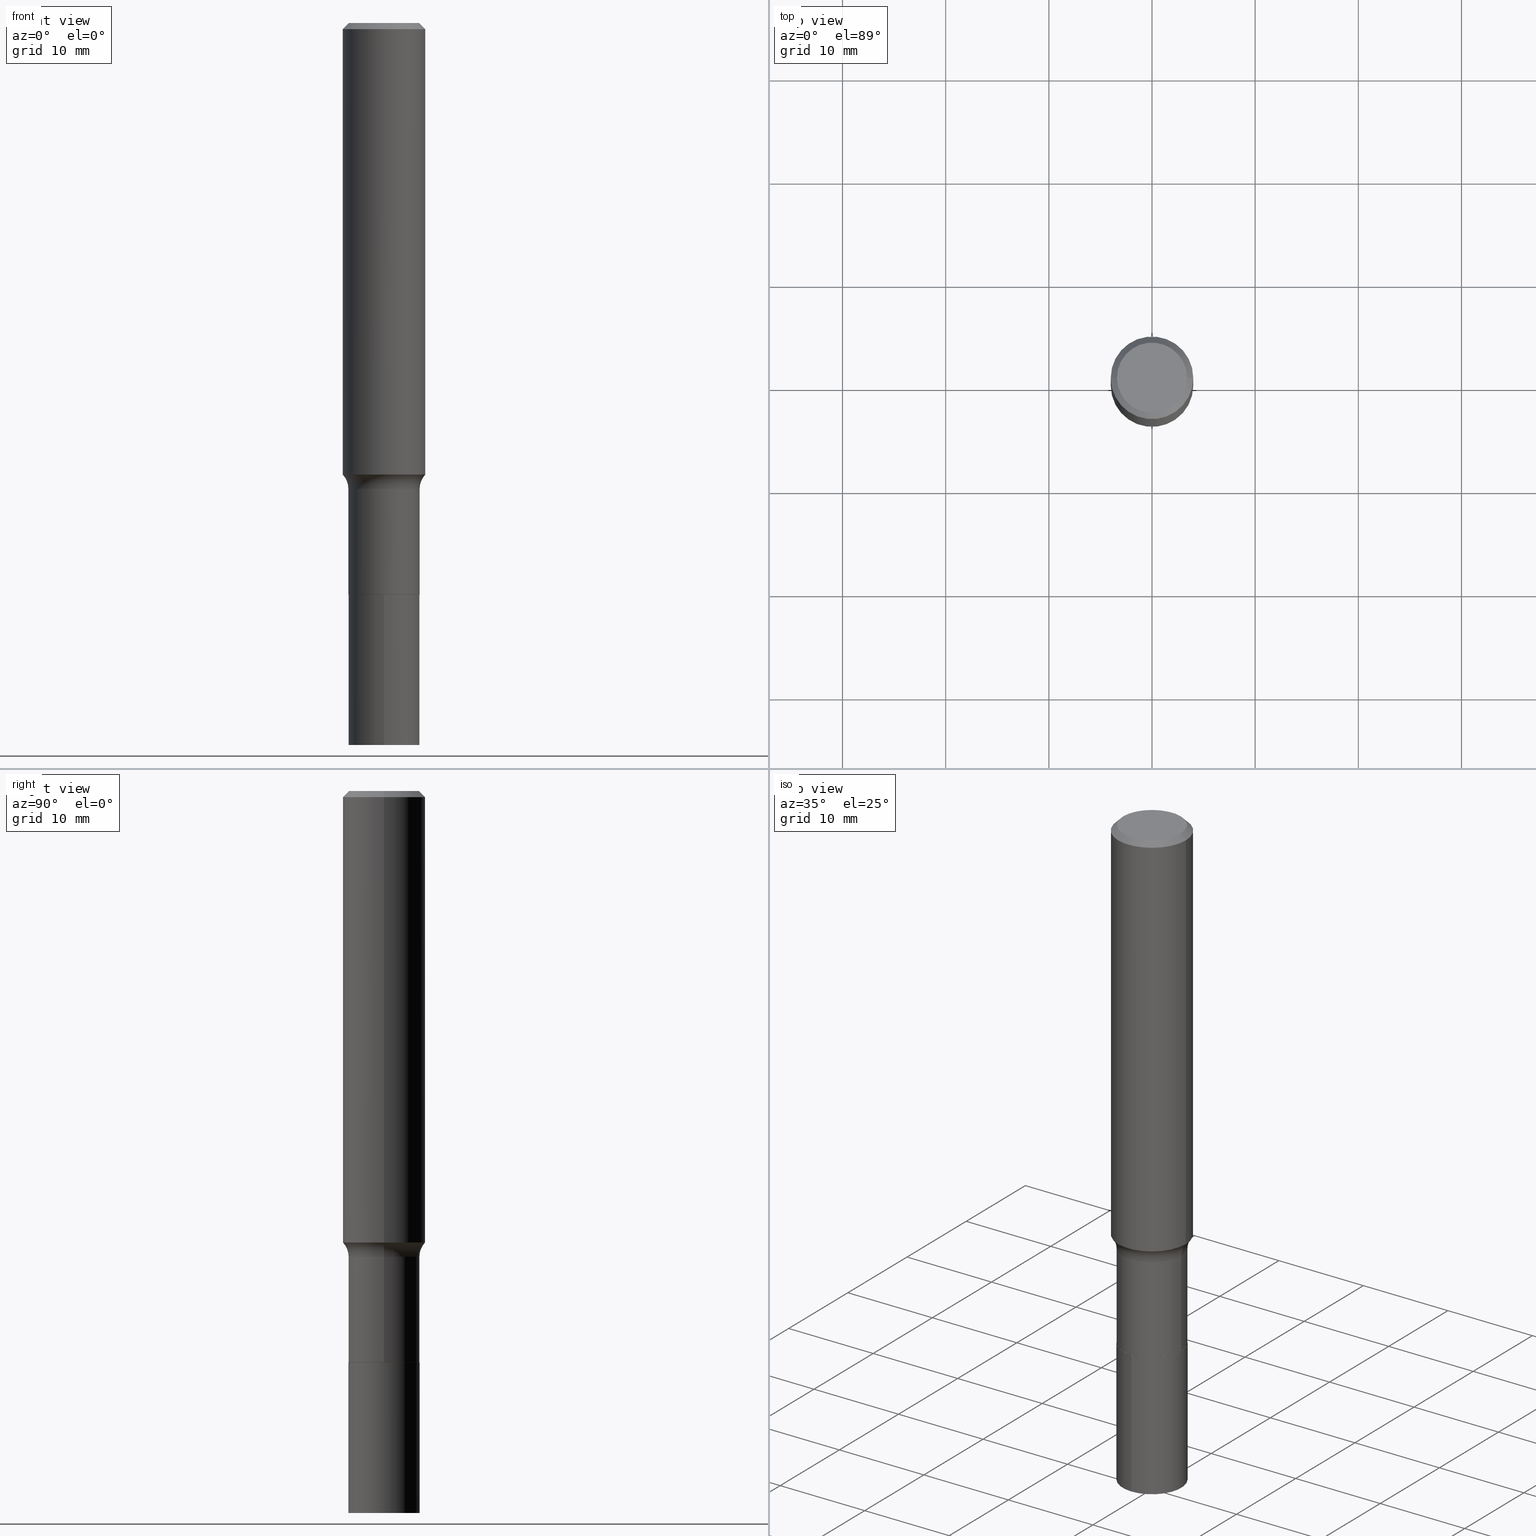
[diagram: canonical four-view strip — front | top / right | iso, engineering-drawing reading convention]
A machine part, canonical four-view strip (front | top / right | iso — engineering-drawing reading convention). The complete STEP part file that produces these views, byte-faithful:
ISO-10303-21;
HEADER;
FILE_DESCRIPTION (( 'STEP AP203' ),
    '1' );
FILE_NAME ('58514.STEP',
    '2024-04-19T14:40:47',
    ( '' ),
    ( '' ),
    'SwSTEP 2.0',
    'SolidWorks 2023',
    '' );
FILE_SCHEMA (( 'CONFIG_CONTROL_DESIGN' ));
ENDSEC;

DATA;
#1 = APPROVAL_DATE_TIME ( #253, #244 ) ;
#2 = AXIS2_PLACEMENT_3D ( 'NONE', #423, #134, #66 ) ;
#3 = VERTEX_POINT ( 'NONE', #370 ) ;
#4 = ORIENTED_EDGE ( 'NONE', *, *, #201, .T. ) ;
#5 = DIMENSIONAL_EXPONENTS ( 1.000000000000000000, 0.000000000000000000, 0.000000000000000000, 0.000000000000000000, 0.000000000000000000, 0.000000000000000000, 0.000000000000000000 ) ;
#6 = ADVANCED_FACE ( 'NONE', ( #193 ), #120, .F. ) ;
#7 = CARTESIAN_POINT ( 'NONE',  ( 5.333322919409164465E-29, -7.614571651883016400E-15, -2.180899999999999839 ) ) ;
#8 = PRODUCT ( '58514', '58514', '', ( #314 ) ) ;
#9 = CYLINDRICAL_SURFACE ( 'NONE', #380, 0.1575000000000000844 ) ;
#10 = CARTESIAN_POINT ( 'NONE',  ( -0.1575000000000002232, -4.898572338728670003E-15, -1.723531236041119241 ) ) ;
#11 = COORDINATED_UNIVERSAL_TIME_OFFSET ( 5, 0, .BEHIND. ) ;
#12 = AXIS2_PLACEMENT_3D ( 'NONE', #106, #96, #384 ) ;
#13 = CARTESIAN_POINT ( 'NONE',  ( 0.1575000000000000011, -1.182302868365756679E-15, -0.02362500000000013201 ) ) ;
#14 = VERTEX_POINT ( 'NONE', #10 ) ;
#15 = EDGE_CURVE ( 'NONE', #330, #360, #297, .T. ) ;
#16 = DIRECTION ( 'NONE',  ( 1.000000000000000000, -6.982962677686262766E-15, 0.000000000000000000 ) ) ;
#17 = CARTESIAN_POINT ( 'NONE',  ( 4.348288084277790698E-29, -6.208202968596996327E-15, -1.778099999999999792 ) ) ;
#18 = CARTESIAN_POINT ( 'NONE',  ( 5.332100185006071663E-29, -7.612825911213594108E-15, -2.180400000000000116 ) ) ;
#19 = ORIENTED_EDGE ( 'NONE', *, *, #180, .T. ) ;
#20 = CONICAL_SURFACE ( 'NONE', #206, 0.1355000000000000093, 0.7853981633975849475 ) ;
#21 = CC_DESIGN_SECURITY_CLASSIFICATION ( #153, ( #428 ) ) ;
#22 = CARTESIAN_POINT ( 'NONE',  ( 0.000000000000000000, 0.000000000000000000, 0.000000000000000000 ) ) ;
#23 = DIRECTION ( 'NONE',  ( -2.445468806185136597E-29, 3.491481338843145583E-15, 1.000000000000000000 ) ) ;
#24 = ADVANCED_FACE ( 'NONE', ( #440 ), #420, .F. ) ;
#25 = CARTESIAN_POINT ( 'NONE',  ( 0.1355000000000000093, -8.560763094709504466E-15, -2.180899999999999839 ) ) ;
#26 = ORIENTED_EDGE ( 'NONE', *, *, #95, .T. ) ;
#27 = DIRECTION ( 'NONE',  ( 1.000000000000000000, -6.982962677686265133E-15, 0.000000000000000000 ) ) ;
#28 = CARTESIAN_POINT ( 'NONE',  ( -0.1575000000000000011, 1.017330375105417295E-15, -0.02362500000000013201 ) ) ;
#29 = CONICAL_SURFACE ( 'NONE', #99, 0.1355000000000000093, 0.7853981633975849475 ) ;
#30 = CARTESIAN_POINT ( 'NONE',  ( -0.1360000000000000098, 9.663381206337363222E-16, -6.689751722746672110E-30 ) ) ;
#31 = AXIS2_PLACEMENT_3D ( 'NONE', #278, #71, #173 ) ;
#32 = FACE_OUTER_BOUND ( 'NONE', #185, .T. ) ;
#33 = EDGE_CURVE ( 'NONE', #326, #34, #128, .T. ) ;
#34 = VERTEX_POINT ( 'NONE', #237 ) ;
#35 = EDGE_LOOP ( 'NONE', ( #400, #356, #123, #408 ) ) ;
#36 = PERSON_AND_ORGANIZATION ( #276, #395 ) ;
#37 = CLOSED_SHELL ( 'NONE', ( #178, #150, #439, #85 ) ) ;
#38 = AXIS2_PLACEMENT_3D ( 'NONE', #444, #377, #204 ) ;
#39 = LOCAL_TIME ( 10, 40, 47.00000000000000000, #361 ) ;
#40 = ORIENTED_EDGE ( 'NONE', *, *, #201, .F. ) ;
#41 = ORIENTED_EDGE ( 'NONE', *, *, #219, .T. ) ;
#42 = DATE_AND_TIME ( #194, #262 ) ;
#43 = VERTEX_POINT ( 'NONE', #415 ) ;
#44 = AXIS2_PLACEMENT_3D ( 'NONE', #385, #64, #279 ) ;
#45 = VECTOR ( 'NONE', #447, 39.37007874015748143 ) ;
#46 = EDGE_CURVE ( 'NONE', #156, #49, #47, .T. ) ;
#47 = LINE ( 'NONE', #129, #307 ) ;
#48 = CARTESIAN_POINT ( 'NONE',  ( 0.1575000000000002232, -7.117493769286417454E-15, -1.723531236041119241 ) ) ;
#49 = VERTEX_POINT ( 'NONE', #229 ) ;
#50 = DIRECTION ( 'NONE',  ( -2.445082877625027389E-29, 3.492034010506911501E-15, 1.000000000000000000 ) ) ;
#51 = APPROVAL ( #437, 'UNSPECIFIED' ) ;
#52 = CARTESIAN_POINT ( 'NONE',  ( 5.333322919409164465E-29, -7.614571651883016400E-15, -2.180899999999999839 ) ) ;
#53 = VECTOR ( 'NONE', #174, 39.37007874015748143 ) ;
#54 = PERSON_AND_ORGANIZATION_ROLE ( 'classification_officer' ) ;
#55 = TOROIDAL_SURFACE ( 'NONE', #162, 0.2159999999999999698, 0.07999999999999996003 ) ;
#56 = CARTESIAN_POINT ( 'NONE',  ( -0.1575000000000000844, 1.119104808822158392E-15, -7.747322767151481189E-30 ) ) ;
#57 = DIRECTION ( 'NONE',  ( -2.445082877625027389E-29, 3.492034010506911501E-15, 1.000000000000000000 ) ) ;
#58 = DIRECTION ( 'NONE',  ( -2.445468806185136597E-29, 3.491481338843145583E-15, 1.000000000000000000 ) ) ;
#59 = CARTESIAN_POINT ( 'NONE',  ( 0.000000000000000000, 0.000000000000000000, 0.000000000000000000 ) ) ;
#60 = CARTESIAN_POINT ( 'NONE',  ( 0.2159999999999999698, -7.716522906977230631E-15, -1.778099999999999792 ) ) ;
#61 = DIRECTION ( 'NONE',  ( -1.000000000000000000, 6.982962677686265922E-15, -4.876176775795935793E-29 ) ) ;
#62 = EDGE_CURVE ( 'NONE', #169, #360, #190, .T. ) ;
#63 = CIRCLE ( 'NONE', #412, 0.1359999999999999820 ) ;
#64 = DIRECTION ( 'NONE',  ( 2.445082877625027109E-29, -3.492034010506911501E-15, -1.000000000000000000 ) ) ;
#65 = APPROVAL_ROLE ( '' ) ;
#66 = DIRECTION ( 'NONE',  ( -6.982962677686265922E-15, -1.000000000000000000, 4.017423520094504617E-15 ) ) ;
#67 = DIRECTION ( 'NONE',  ( -2.445468806185136597E-29, 3.491481338843145583E-15, 1.000000000000000000 ) ) ;
#68 = CC_DESIGN_PERSON_AND_ORGANIZATION_ASSIGNMENT ( #324, #290, ( #428 ) ) ;
#69 = DIRECTION ( 'NONE',  ( 1.000000000000000000, -6.982962677686264344E-15, 0.000000000000000000 ) ) ;
#70 = CIRCLE ( 'NONE', #421, 0.1360000000000000375 ) ;
#71 = DIRECTION ( 'NONE',  ( 0.000000000000000000, 0.000000000000000000, 1.000000000000000000 ) ) ;
#72 = CARTESIAN_POINT ( 'NONE',  ( 4.348288084277790698E-29, -6.208202968596996327E-15, -1.778099999999999792 ) ) ;
#73 = ORIENTED_EDGE ( 'NONE', *, *, #285, .T. ) ;
#74 = ORIENTED_EDGE ( 'NONE', *, *, #95, .F. ) ;
#75 = APPROVAL_DATE_TIME ( #42, #51 ) ;
#76 = AXIS2_PLACEMENT_3D ( 'NONE', #212, #283, #27 ) ;
#77 = ORIENTED_EDGE ( 'NONE', *, *, #216, .F. ) ;
#78 = COORDINATED_UNIVERSAL_TIME_OFFSET ( 5, 0, .BEHIND. ) ;
#79 = ORIENTED_EDGE ( 'NONE', *, *, #159, .T. ) ;
#80 = PERSON_AND_ORGANIZATION_ROLE ( 'creator' ) ;
#81 = ADVANCED_FACE ( 'NONE', ( #239 ), #376, .T. ) ;
#82 = DIRECTION ( 'NONE',  ( 1.000000000000000000, -6.982962677686264344E-15, 0.000000000000000000 ) ) ;
#83 = DIRECTION ( 'NONE',  ( -2.445468806185136597E-29, 3.491481338843145583E-15, 1.000000000000000000 ) ) ;
#84 = VERTEX_POINT ( 'NONE', #136 ) ;
#85 = ADVANCED_FACE ( 'NONE', ( #346 ), #417, .F. ) ;
#86 = CARTESIAN_POINT ( 'NONE',  ( 0.000000000000000000, 0.000000000000000000, 0.000000000000000000 ) ) ;
#87 = ORIENTED_EDGE ( 'NONE', *, *, #15, .F. ) ;
#88 = LINE ( 'NONE', #353, #160 ) ;
#89 = AXIS2_PLACEMENT_3D ( 'NONE', #17, #365, #263 ) ;
#90 = DIRECTION ( 'NONE',  ( -2.438088387897960049E-29, 3.491481338843145188E-15, 1.000000000000000000 ) ) ;
#91 = DIRECTION ( 'NONE',  ( 1.000000000000000000, -6.982962677686265922E-15, 0.000000000000000000 ) ) ;
#92 = ORIENTED_EDGE ( 'NONE', *, *, #216, .T. ) ;
#93 = CYLINDRICAL_SURFACE ( 'NONE', #261, 0.1575000000000000844 ) ;
#94 = CARTESIAN_POINT ( 'NONE',  ( -9.918016808018343626E-30, -2.069379090074626911E-14, -2.755900000000000016 ) ) ;
#95 = EDGE_CURVE ( 'NONE', #326, #296, #354, .T. ) ;
#96 = DIRECTION ( 'NONE',  ( -2.445468806185136597E-29, 3.491481338843145583E-15, 1.000000000000000000 ) ) ;
#97 = MANIFOLD_SOLID_BREP ( 'Body-Move/Copy2[2]', #233 ) ;
#98 = FACE_OUTER_BOUND ( 'NONE', #155, .T. ) ;
#99 = AXIS2_PLACEMENT_3D ( 'NONE', #451, #23, #69 ) ;
#100 = APPROVAL_STATUS ( 'not_yet_approved' ) ;
#101 = DIRECTION ( 'NONE',  ( -6.982962677686265922E-15, -1.000000000000000000, 4.017423520094504617E-15 ) ) ;
#102 = EDGE_CURVE ( 'NONE', #49, #292, #236, .T. ) ;
#103 = DIRECTION ( 'NONE',  ( -2.445468806185136597E-29, 3.491481338843145583E-15, 1.000000000000000000 ) ) ;
#104 = CARTESIAN_POINT ( 'NONE',  ( 5.777420054612417601E-31, -8.248624663016977839E-17, -0.02362500000000013201 ) ) ;
#105 = EDGE_LOOP ( 'NONE', ( #198, #111 ) ) ;
#106 = CARTESIAN_POINT ( 'NONE',  ( 4.214841874224268798E-29, -6.017677147550829184E-15, -1.723531236041119241 ) ) ;
#107 = AXIS2_PLACEMENT_3D ( 'NONE', #104, #247, #192 ) ;
#108 = PERSON_AND_ORGANIZATION ( #276, #395 ) ;
#109 = ADVANCED_FACE ( 'NONE', ( #205 ), #20, .T. ) ;
#110 = ORIENTED_EDGE ( 'NONE', *, *, #116, .T. ) ;
#111 = ORIENTED_EDGE ( 'NONE', *, *, #325, .F. ) ;
#112 = ORIENTED_EDGE ( 'NONE', *, *, #268, .F. ) ;
#113 = PERSON_AND_ORGANIZATION ( #276, #395 ) ;
#114 = ORIENTED_EDGE ( 'NONE', *, *, #340, .F. ) ;
#115 = DATE_AND_TIME ( #145, #218 ) ;
#116 = EDGE_CURVE ( 'NONE', #156, #43, #170, .T. ) ;
#117 = EDGE_LOOP ( 'NONE', ( #110, #92, #363, #436 ) ) ;
#118 = ORIENTED_EDGE ( 'NONE', *, *, #340, .T. ) ;
#119 = AXIS2_PLACEMENT_3D ( 'NONE', #284, #315, #101 ) ;
#120 = PLANE ( 'NONE',  #250 ) ;
#121 = ADVANCED_BREP_SHAPE_REPRESENTATION ( '58514', ( #409, #97, #31 ), #403 ) ;
#122 = CARTESIAN_POINT ( 'NONE',  ( -0.2159999999999999698, -4.673430659355180140E-15, -1.778099999999999792 ) ) ;
#123 = ORIENTED_EDGE ( 'NONE', *, *, #362, .T. ) ;
#124 = UNCERTAINTY_MEASURE_WITH_UNIT (LENGTH_MEASURE( 1.000000000000000082E-05 ), #286, 'distance_accuracy_value', 'NONE');
#125 = CARTESIAN_POINT ( 'NONE',  ( 4.348288084277790698E-29, -6.208202968596996327E-15, -1.778099999999999792 ) ) ;
#126 = DIRECTION ( 'NONE',  ( -2.445468806185136597E-29, 3.491481338843145583E-15, 1.000000000000000000 ) ) ;
#127 = DIRECTION ( 'NONE',  ( -6.982962677686266711E-15, -1.000000000000000000, 3.491481338843145583E-15 ) ) ;
#128 = CIRCLE ( 'NONE', #151, 0.1355000000000000093 ) ;
#129 = CARTESIAN_POINT ( 'NONE',  ( -9.496829241652788115E-16, -0.1360000000000076148, -2.180899999999999395 ) ) ;
#130 = CIRCLE ( 'NONE', #388, 0.1338749999999999940 ) ;
#131 = FACE_OUTER_BOUND ( 'NONE', #35, .T. ) ;
#132 = DIRECTION ( 'NONE',  ( -6.982962677686265922E-15, -1.000000000000000000, 3.492034010506911501E-15 ) ) ;
#133 = DIRECTION ( 'NONE',  ( -2.445468806185136597E-29, 3.491481338843145583E-15, 1.000000000000000000 ) ) ;
#134 = DIRECTION ( 'NONE',  ( -2.445082877625027389E-29, 3.492034010506911501E-15, 1.000000000000000000 ) ) ;
#135 = LINE ( 'NONE', #210, #256 ) ;
#136 = CARTESIAN_POINT ( 'NONE',  ( -0.1338749999999999940, 9.760872517903331886E-16, 4.101342130337800673E-18 ) ) ;
#137 = ADVANCED_FACE ( 'NONE', ( #456 ), #29, .T. ) ;
#138 = AXIS2_PLACEMENT_3D ( 'NONE', #213, #381, #61 ) ;
#139 = APPROVAL_PERSON_ORGANIZATION ( #221, #51, #334 ) ;
#140 = DIRECTION ( 'NONE',  ( 1.000000000000000000, -6.982962677686266711E-15, 4.876170806578254279E-29 ) ) ;
#141 = FACE_OUTER_BOUND ( 'NONE', #266, .T. ) ;
#142 = LENGTH_MEASURE_WITH_UNIT ( LENGTH_MEASURE( 0.02539999999999999897 ), #181 );
#143 = CYLINDRICAL_SURFACE ( 'NONE', #2, 0.1360000000000000098 ) ;
#144 = APPLICATION_PROTOCOL_DEFINITION ( 'international standard', 'config_control_design', 1994, #432 ) ;
#145 = CALENDAR_DATE ( 2024, 19, 4 ) ;
#146 = ADVANCED_FACE ( 'NONE', ( #32 ), #313, .F. ) ;
#147 = ORIENTED_EDGE ( 'NONE', *, *, #414, .F. ) ;
#148 = APPROVAL_DATE_TIME ( #389, #235 ) ;
#149 = DATE_AND_TIME ( #393, #422 ) ;
#150 = ADVANCED_FACE ( 'NONE', ( #98 ), #246, .F. ) ;
#151 = AXIS2_PLACEMENT_3D ( 'NONE', #7, #126, #82 ) ;
#152 = AXIS2_PLACEMENT_3D ( 'NONE', #60, #127, #16 ) ;
#153 = SECURITY_CLASSIFICATION ( '', '', #288 ) ;
#154 = ORIENTED_EDGE ( 'NONE', *, *, #457, .T. ) ;
#155 = EDGE_LOOP ( 'NONE', ( #260, #455 ) ) ;
#156 = VERTEX_POINT ( 'NONE', #281 ) ;
#157 = EDGE_LOOP ( 'NONE', ( #77, #79, #429, #289 ) ) ;
#158 = DIRECTION ( 'NONE',  ( 1.000000000000000000, -6.982962677686267499E-15, 4.876176775795936353E-29 ) ) ;
#159 = EDGE_CURVE ( 'NONE', #43, #156, #364, .T. ) ;
#160 = VECTOR ( 'NONE', #379, 39.37007874015748143 ) ;
#161 = EDGE_LOOP ( 'NONE', ( #258, #154, #329, #274 ) ) ;
#162 = AXIS2_PLACEMENT_3D ( 'NONE', #72, #103, #347 ) ;
#163 = CARTESIAN_POINT ( 'NONE',  ( 5.777420054612417601E-31, -8.248624663016977839E-17, -0.02362500000000013201 ) ) ;
#164 = ORIENTED_EDGE ( 'NONE', *, *, #33, .T. ) ;
#165 = CARTESIAN_POINT ( 'NONE',  ( 0.1359999999999999820, -7.157885892762328978E-15, -1.778099999999999792 ) ) ;
#166 = CARTESIAN_POINT ( 'NONE',  ( 0.1575000000000000011, -1.163014681279185964E-15, -0.02362500000000013201 ) ) ;
#167 = EDGE_CURVE ( 'NONE', #292, #49, #293, .T. ) ;
#168 = FACE_OUTER_BOUND ( 'NONE', #187, .T. ) ;
#169 = VERTEX_POINT ( 'NONE', #241 ) ;
#170 = CIRCLE ( 'NONE', #255, 0.1360000000000000098 ) ;
#171 = DIRECTION ( 'NONE',  ( 1.000000000000000000, -6.982962677686265922E-15, 4.876176775795934672E-29 ) ) ;
#172 = DIRECTION ( 'NONE',  ( -2.445468806185136597E-29, 3.491481338843145583E-15, 1.000000000000000000 ) ) ;
#173 = DIRECTION ( 'NONE',  ( 1.000000000000000000, 0.000000000000000000, 0.000000000000000000 ) ) ;
#174 = DIRECTION ( 'NONE',  ( 0.7071067811866441621, -2.468850131083269169E-15, 0.7071067811864508723 ) ) ;
#175 = DIRECTION ( 'NONE',  ( -0.7071067811865453523, 2.468850131082234184E-15, -0.7071067811865496822 ) ) ;
#176 = AXIS2_PLACEMENT_3D ( 'NONE', #94, #177, #132 ) ;
#177 = DIRECTION ( 'NONE',  ( -2.445082877625027109E-29, 3.492034010506911501E-15, 1.000000000000000000 ) ) ;
#178 = ADVANCED_FACE ( 'NONE', ( #453 ), #143, .T. ) ;
#179 = CARTESIAN_POINT ( 'NONE',  ( 5.333322919409164465E-29, -7.614571651883016400E-15, -2.180899999999999839 ) ) ;
#180 = EDGE_CURVE ( 'NONE', #84, #330, #352, .T. ) ;
#181 =( LENGTH_UNIT ( ) NAMED_UNIT ( * ) SI_UNIT ( $, .METRE. ) );
#182 = ORIENTED_EDGE ( 'NONE', *, *, #302, .F. ) ;
#183 = VECTOR ( 'NONE', #50, 39.37007874015748143 ) ;
#184 = COORDINATED_UNIVERSAL_TIME_OFFSET ( 5, 0, .BEHIND. ) ;
#185 = EDGE_LOOP ( 'NONE', ( #118, #438 ) ) ;
#186 = ADVANCED_FACE ( 'NONE', ( #141 ), #464, .T. ) ;
#187 = EDGE_LOOP ( 'NONE', ( #112, #200, #272, #87 ) ) ;
#188 = CALENDAR_DATE ( 2024, 19, 4 ) ;
#189 = CONICAL_SURFACE ( 'NONE', #38, 0.1575000000000000011, 0.7853981633974452814 ) ;
#190 = LINE ( 'NONE', #166, #387 ) ;
#191 = EDGE_CURVE ( 'NONE', #14, #443, #251, .T. ) ;
#192 = DIRECTION ( 'NONE',  ( -1.000000000000000000, 6.982962677686265922E-15, 0.000000000000000000 ) ) ;
#193 = FACE_OUTER_BOUND ( 'NONE', #105, .T. ) ;
#194 = CALENDAR_DATE ( 2024, 19, 4 ) ;
#195 = DIRECTION ( 'NONE',  ( 7.105427357601001859E-15, 1.000000000000000000, -3.491481338843145583E-15 ) ) ;
#196 = AXIS2_PLACEMENT_3D ( 'NONE', #424, #67, #140 ) ;
#197 = AXIS2_PLACEMENT_3D ( 'NONE', #125, #269, #410 ) ;
#198 = ORIENTED_EDGE ( 'NONE', *, *, #33, .F. ) ;
#199 = CARTESIAN_POINT ( 'NONE',  ( 0.000000000000000000, 0.000000000000000000, 0.000000000000000000 ) ) ;
#200 = ORIENTED_EDGE ( 'NONE', *, *, #426, .T. ) ;
#201 = EDGE_CURVE ( 'NONE', #392, #254, #358, .T. ) ;
#202 = CARTESIAN_POINT ( 'NONE',  ( -1.002970424325032604E-46, 1.431975951230895391E-32, 4.101342130344482109E-18 ) ) ;
#203 = ORIENTED_EDGE ( 'NONE', *, *, #457, .F. ) ;
#204 = DIRECTION ( 'NONE',  ( -1.000000000000000000, 6.982962677686265922E-15, 0.000000000000000000 ) ) ;
#205 = FACE_OUTER_BOUND ( 'NONE', #295, .T. ) ;
#206 = AXIS2_PLACEMENT_3D ( 'NONE', #425, #419, #211 ) ;
#207 = CC_DESIGN_APPROVAL ( #235, ( #351 ) ) ;
#208 =( NAMED_UNIT ( * ) SI_UNIT ( $, .STERADIAN. ) SOLID_ANGLE_UNIT ( ) );
#209 = DIRECTION ( 'NONE',  ( -6.982962677686265922E-15, -1.000000000000000000, 4.017423520094504617E-15 ) ) ;
#210 = CARTESIAN_POINT ( 'NONE',  ( 0.1360000000000000098, -9.496829241653322569E-16, 6.631600415082472006E-30 ) ) ;
#211 = DIRECTION ( 'NONE',  ( 1.000000000000000000, -6.982962677686264344E-15, 0.000000000000000000 ) ) ;
#212 = CARTESIAN_POINT ( 'NONE',  ( 4.214841874224268798E-29, -6.017677147550829184E-15, -1.723531236041119241 ) ) ;
#213 = CARTESIAN_POINT ( 'NONE',  ( -5.014852121625163022E-47, 7.159879756154476955E-33, 2.050671065172241055E-18 ) ) ;
#214 = CC_DESIGN_APPROVAL ( #244, ( #153 ) ) ;
#215 = FACE_OUTER_BOUND ( 'NONE', #157, .T. ) ;
#216 = EDGE_CURVE ( 'NONE', #43, #292, #404, .T. ) ;
#217 = CIRCLE ( 'NONE', #12, 0.1575000000000002232 ) ;
#218 = LOCAL_TIME ( 10, 40, 47.00000000000000000, #184 ) ;
#219 = EDGE_CURVE ( 'NONE', #254, #443, #63, .T. ) ;
#220 = ORIENTED_EDGE ( 'NONE', *, *, #396, .F. ) ;
#221 = PERSON_AND_ORGANIZATION ( #276, #395 ) ;
#222 = ORIENTED_EDGE ( 'NONE', *, *, #268, .T. ) ;
#223 = PERSON_AND_ORGANIZATION ( #276, #395 ) ;
#224 = ADVANCED_FACE ( 'NONE', ( #305 ), #93, .T. ) ;
#225 = AXIS2_PLACEMENT_3D ( 'NONE', #59, #172, #348 ) ;
#226 = EDGE_LOOP ( 'NONE', ( #270, #367, #26, #182 ) ) ;
#227 = ADVANCED_FACE ( 'NONE', ( #407 ), #234, .T. ) ;
#228 = LINE ( 'NONE', #375, #328 ) ;
#229 = CARTESIAN_POINT ( 'NONE',  ( -9.496829241652788115E-16, -0.1360000000000076148, -2.180899999999999395 ) ) ;
#230 = CARTESIAN_POINT ( 'NONE',  ( 4.348288084277790698E-29, -6.208202968596996327E-15, -1.778099999999999792 ) ) ;
#231 = ORIENTED_EDGE ( 'NONE', *, *, #302, .T. ) ;
#232 = DATE_TIME_ROLE ( 'creation_date' ) ;
#233 = CLOSED_SHELL ( 'NONE', ( #109, #391, #224, #24, #81, #227, #468, #312, #186, #146, #6, #137 ) ) ;
#234 = CYLINDRICAL_SURFACE ( 'NONE', #273, 0.1360000000000000098 ) ;
#235 = APPROVAL ( #100, 'UNSPECIFIED' ) ;
#236 = CIRCLE ( 'NONE', #119, 0.1360000000000000098 ) ;
#237 = CARTESIAN_POINT ( 'NONE',  ( -0.1355000000000000093, -6.649137017753969775E-15, -2.180899999999999839 ) ) ;
#238 = CARTESIAN_POINT ( 'NONE',  ( 5.333322919409164465E-29, -7.614571651883016400E-15, -2.180899999999999839 ) ) ;
#239 = FACE_OUTER_BOUND ( 'NONE', #161, .T. ) ;
#240 = DIRECTION ( 'NONE',  ( -0.7071067811866441621, 7.493145998870704414E-15, 0.7071067811864508723 ) ) ;
#241 = CARTESIAN_POINT ( 'NONE',  ( 0.1338749999999999940, -1.040731925365424925E-15, 4.101342130351390035E-18 ) ) ;
#242 = DIRECTION ( 'NONE',  ( -2.445468806185136877E-29, 3.491481338843145188E-15, 1.000000000000000000 ) ) ;
#243 = DIRECTION ( 'NONE',  ( -6.982962677686265922E-15, -1.000000000000000000, 4.017423520094504617E-15 ) ) ;
#244 = APPROVAL ( #267, 'UNSPECIFIED' ) ;
#245 = CYLINDRICAL_SURFACE ( 'NONE', #435, 0.1360000000000000098 ) ;
#246 = PLANE ( 'NONE',  #176 ) ;
#247 = DIRECTION ( 'NONE',  ( 2.445468806185136597E-29, -3.491481338843145583E-15, -1.000000000000000000 ) ) ;
#248 = DIRECTION ( 'NONE',  ( -6.982962677686265922E-15, -1.000000000000000000, 4.017423520094504617E-15 ) ) ;
#249 = EDGE_CURVE ( 'NONE', #296, #3, #70, .T. ) ;
#250 = AXIS2_PLACEMENT_3D ( 'NONE', #52, #90, #401 ) ;
#251 = CIRCLE ( 'NONE', #345, 0.07999999999999996003 ) ;
#252 = CALENDAR_DATE ( 2024, 19, 4 ) ;
#253 = DATE_AND_TIME ( #188, #39 ) ;
#254 = VERTEX_POINT ( 'NONE', #165 ) ;
#255 = AXIS2_PLACEMENT_3D ( 'NONE', #277, #318, #459 ) ;
#256 = VECTOR ( 'NONE', #242, 39.37007874015748143 ) ;
#257 = ORIENTED_EDGE ( 'NONE', *, *, #426, .F. ) ;
#258 = ORIENTED_EDGE ( 'NONE', *, *, #249, .T. ) ;
#259 = PRODUCT_RELATED_PRODUCT_CATEGORY ( 'detail', '', ( #8 ) ) ;
#260 = ORIENTED_EDGE ( 'NONE', *, *, #116, .F. ) ;
#261 = AXIS2_PLACEMENT_3D ( 'NONE', #22, #265, #442 ) ;
#262 = LOCAL_TIME ( 10, 40, 47.00000000000000000, #78 ) ;
#263 = DIRECTION ( 'NONE',  ( 1.000000000000000000, -6.982962677686265922E-15, 4.883557194083112340E-29 ) ) ;
#264 = PRODUCT_DEFINITION_SHAPE ( 'NONE', 'NONE',  #351 ) ;
#265 = DIRECTION ( 'NONE',  ( -2.445468806185136597E-29, 3.491481338843145583E-15, 1.000000000000000000 ) ) ;
#266 = EDGE_LOOP ( 'NONE', ( #301, #114, #19, #294 ) ) ;
#267 = APPROVAL_STATUS ( 'not_yet_approved' ) ;
#268 = EDGE_CURVE ( 'NONE', #14, #330, #338, .T. ) ;
#269 = DIRECTION ( 'NONE',  ( -2.445468806185136597E-29, 3.491481338843145583E-15, 1.000000000000000000 ) ) ;
#270 = ORIENTED_EDGE ( 'NONE', *, *, #285, .F. ) ;
#271 = CARTESIAN_POINT ( 'NONE',  ( 9.663381206338035726E-16, 0.1359999999999923770, -2.180900000000000283 ) ) ;
#272 = ORIENTED_EDGE ( 'NONE', *, *, #405, .T. ) ;
#273 = AXIS2_PLACEMENT_3D ( 'NONE', #86, #344, #171 ) ;
#274 = ORIENTED_EDGE ( 'NONE', *, *, #461, .F. ) ;
#275 = DIRECTION ( 'NONE',  ( 1.000000000000000000, -6.982962677686265922E-15, 0.000000000000000000 ) ) ;
#276 = PERSON ( 'UNSPECIFIED', 'UNSPECIFIED', 'UNSPECIFIED', ('UNSPECIFIED'), ('UNSPECIFIED'), ('UNSPECIFIED') ) ;
#277 = CARTESIAN_POINT ( 'NONE',  ( 6.739245574043556692E-29, -9.622491207924491647E-15, -2.755900000000000460 ) ) ;
#278 = CARTESIAN_POINT ( 'NONE',  ( 0.000000000000000000, 0.000000000000000000, 0.000000000000000000 ) ) ;
#279 = DIRECTION ( 'NONE',  ( 6.982962677686265922E-15, 1.000000000000000000, -3.492034010506911501E-15 ) ) ;
#280 = CC_DESIGN_PERSON_AND_ORGANIZATION_ASSIGNMENT ( #431, #54, ( #153 ) ) ;
#281 = CARTESIAN_POINT ( 'NONE',  ( -9.496829241652648093E-16, -0.1360000000000096132, -2.755900000000000016 ) ) ;
#282 = CIRCLE ( 'NONE', #76, 0.1575000000000002232 ) ;
#283 = DIRECTION ( 'NONE',  ( -2.445468806185136597E-29, 3.491481338843145583E-15, 1.000000000000000000 ) ) ;
#284 = CARTESIAN_POINT ( 'NONE',  ( 5.333322919409164465E-29, -7.614571651883016400E-15, -2.180899999999999839 ) ) ;
#285 = EDGE_CURVE ( 'NONE', #34, #3, #228, .T. ) ;
#286 =( CONVERSION_BASED_UNIT ( 'INCH', #142 ) LENGTH_UNIT ( ) NAMED_UNIT ( #5 ) );
#287 = AXIS2_PLACEMENT_3D ( 'NONE', #341, #58, #275 ) ;
#288 = SECURITY_CLASSIFICATION_LEVEL ( 'unclassified' ) ;
#289 = ORIENTED_EDGE ( 'NONE', *, *, #167, .F. ) ;
#290 = PERSON_AND_ORGANIZATION_ROLE ( 'design_supplier' ) ;
#291 = AXIS2_PLACEMENT_3D ( 'NONE', #337, #304, #445 ) ;
#292 = VERTEX_POINT ( 'NONE', #271 ) ;
#293 = CIRCLE ( 'NONE', #427, 0.1360000000000000098 ) ;
#294 = ORIENTED_EDGE ( 'NONE', *, *, #15, .T. ) ;
#295 = EDGE_LOOP ( 'NONE', ( #164, #73, #333, #74 ) ) ;
#296 = VERTEX_POINT ( 'NONE', #366 ) ;
#297 = CIRCLE ( 'NONE', #291, 0.1575000000000000011 ) ;
#298 = CIRCLE ( 'NONE', #394, 0.1355000000000000093 ) ;
#299 = DIRECTION ( 'NONE',  ( 1.000000000000000000, -6.982962677686269077E-15, 0.000000000000000000 ) ) ;
#300 = APPROVAL_PERSON_ORGANIZATION ( #36, #244, #327 ) ;
#301 = ORIENTED_EDGE ( 'NONE', *, *, #62, .F. ) ;
#302 = EDGE_CURVE ( 'NONE', #3, #296, #335, .T. ) ;
#303 = DIRECTION ( 'NONE',  ( -2.445468806185136597E-29, 3.491481338843145583E-15, 1.000000000000000000 ) ) ;
#304 = DIRECTION ( 'NONE',  ( -2.445468806185136597E-29, 3.491481338843145583E-15, 1.000000000000000000 ) ) ;
#305 = FACE_OUTER_BOUND ( 'NONE', #430, .T. ) ;
#306 = DIRECTION ( 'NONE',  ( 0.7071067811865453523, -7.319954787623248157E-15, -0.7071067811865496822 ) ) ;
#307 = VECTOR ( 'NONE', #57, 39.37007874015748143 ) ;
#308 = DIRECTION ( 'NONE',  ( 1.000000000000000000, -6.982962677686266711E-15, 4.876170806578254279E-29 ) ) ;
#309 = VECTOR ( 'NONE', #175, 39.37007874015748143 ) ;
#310 = ORIENTED_EDGE ( 'NONE', *, *, #414, .T. ) ;
#311 = CARTESIAN_POINT ( 'NONE',  ( -0.1575000000000000011, -1.930976888268340109E-15, -0.02362500000000013201 ) ) ;
#312 = ADVANCED_FACE ( 'NONE', ( #168 ), #9, .T. ) ;
#313 = PLANE ( 'NONE',  #138 ) ;
#314 = MECHANICAL_CONTEXT ( 'NONE', #406, 'mechanical' ) ;
#315 = DIRECTION ( 'NONE',  ( -2.445082877625027389E-29, 3.492034010506911501E-15, 1.000000000000000000 ) ) ;
#316 = CARTESIAN_POINT ( 'NONE',  ( -0.1359999999999999820, -5.944176319271559684E-15, -1.778099999999999792 ) ) ;
#317 = AXIS2_PLACEMENT_3D ( 'NONE', #383, #320, #243 ) ;
#318 = DIRECTION ( 'NONE',  ( -2.445082877625027389E-29, 3.492034010506911501E-15, 1.000000000000000000 ) ) ;
#319 = CC_DESIGN_PERSON_AND_ORGANIZATION_ASSIGNMENT ( #321, #462, ( #8 ) ) ;
#320 = DIRECTION ( 'NONE',  ( -2.445082877625027389E-29, 3.492034010506911501E-15, 1.000000000000000000 ) ) ;
#321 = PERSON_AND_ORGANIZATION ( #276, #395 ) ;
#322 = LOCAL_TIME ( 10, 40, 47.00000000000000000, #350 ) ;
#323 = EDGE_LOOP ( 'NONE', ( #466, #342 ) ) ;
#324 = PERSON_AND_ORGANIZATION ( #276, #395 ) ;
#325 = EDGE_CURVE ( 'NONE', #34, #326, #298, .T. ) ;
#326 = VERTEX_POINT ( 'NONE', #336 ) ;
#327 = APPROVAL_ROLE ( '' ) ;
#328 = VECTOR ( 'NONE', #240, 39.37007874015748143 ) ;
#329 = ORIENTED_EDGE ( 'NONE', *, *, #219, .F. ) ;
#330 = VERTEX_POINT ( 'NONE', #311 ) ;
#331 = ORIENTED_EDGE ( 'NONE', *, *, #396, .T. ) ;
#332 = DIRECTION ( 'NONE',  ( -1.000000000000000000, 7.105427357601001859E-15, 0.000000000000000000 ) ) ;
#333 = ORIENTED_EDGE ( 'NONE', *, *, #249, .F. ) ;
#334 = APPROVAL_ROLE ( '' ) ;
#335 = CIRCLE ( 'NONE', #287, 0.1360000000000000375 ) ;
#336 = CARTESIAN_POINT ( 'NONE',  ( 0.1355000000000000093, -8.560763094709504466E-15, -2.180899999999999839 ) ) ;
#337 = CARTESIAN_POINT ( 'NONE',  ( 5.777420054612417601E-31, -8.248624663016977839E-17, -0.02362500000000013201 ) ) ;
#338 = LINE ( 'NONE', #56, #45 ) ;
#339 = EDGE_LOOP ( 'NONE', ( #374, #147, #4, #41 ) ) ;
#340 = EDGE_CURVE ( 'NONE', #84, #169, #130, .T. ) ;
#341 = CARTESIAN_POINT ( 'NONE',  ( 5.332100185006071663E-29, -7.612825911213594108E-15, -2.180400000000000116 ) ) ;
#342 = ORIENTED_EDGE ( 'NONE', *, *, #167, .T. ) ;
#343 = CC_DESIGN_DATE_AND_TIME_ASSIGNMENT ( #149, #232, ( #351 ) ) ;
#344 = DIRECTION ( 'NONE',  ( -2.445468806185136597E-29, 3.491481338843145583E-15, 1.000000000000000000 ) ) ;
#345 = AXIS2_PLACEMENT_3D ( 'NONE', #122, #195, #332 ) ;
#346 = FACE_OUTER_BOUND ( 'NONE', #323, .T. ) ;
#347 = DIRECTION ( 'NONE',  ( 1.000000000000000000, -6.982962677686265922E-15, 4.883557194083112340E-29 ) ) ;
#348 = DIRECTION ( 'NONE',  ( 1.000000000000000000, -6.982962677686265922E-15, 4.876176775795934672E-29 ) ) ;
#349 = EDGE_LOOP ( 'NONE', ( #257, #448, #331, #40 ) ) ;
#350 = COORDINATED_UNIVERSAL_TIME_OFFSET ( 5, 0, .BEHIND. ) ;
#351 = PRODUCT_DEFINITION ( 'UNKNOWN', '', #428, #397 ) ;
#352 = LINE ( 'NONE', #28, #309 ) ;
#353 = CARTESIAN_POINT ( 'NONE',  ( 0.1575000000000000844, -1.099816621735587677E-15, 7.679978421878603638E-30 ) ) ;
#354 = LINE ( 'NONE', #25, #53 ) ;
#355 = FACE_OUTER_BOUND ( 'NONE', #339, .T. ) ;
#356 = ORIENTED_EDGE ( 'NONE', *, *, #62, .T. ) ;
#357 = CC_DESIGN_PERSON_AND_ORGANIZATION_ASSIGNMENT ( #113, #80, ( #428 ) ) ;
#358 = CIRCLE ( 'NONE', #152, 0.07999999999999996003 ) ;
#359 = APPROVAL_PERSON_ORGANIZATION ( #108, #235, #65 ) ;
#360 = VERTEX_POINT ( 'NONE', #13 ) ;
#361 = COORDINATED_UNIVERSAL_TIME_OFFSET ( 5, 0, .BEHIND. ) ;
#362 = EDGE_CURVE ( 'NONE', #360, #330, #402, .T. ) ;
#363 = ORIENTED_EDGE ( 'NONE', *, *, #102, .F. ) ;
#364 = CIRCLE ( 'NONE', #317, 0.1360000000000000098 ) ;
#365 = DIRECTION ( 'NONE',  ( -2.445468806185136597E-29, 3.491481338843145583E-15, 1.000000000000000000 ) ) ;
#366 = CARTESIAN_POINT ( 'NONE',  ( 0.1360000000000000375, -8.562508835378926759E-15, -2.180400000000000116 ) ) ;
#367 = ORIENTED_EDGE ( 'NONE', *, *, #325, .T. ) ;
#368 = CC_DESIGN_PERSON_AND_ORGANIZATION_ASSIGNMENT ( #223, #371, ( #351 ) ) ;
#369 = CARTESIAN_POINT ( 'NONE',  ( 9.663381206337895703E-16, 0.1359999999999923770, -2.180900000000000283 ) ) ;
#370 = CARTESIAN_POINT ( 'NONE',  ( -0.1360000000000000375, -5.944176319271559684E-15, -2.180400000000000116 ) ) ;
#371 = PERSON_AND_ORGANIZATION_ROLE ( 'creator' ) ;
#372 = VECTOR ( 'NONE', #418, 39.37007874015748143 ) ;
#373 = DIRECTION ( 'NONE',  ( -2.445468806185136597E-29, 3.491481338843145583E-15, 1.000000000000000000 ) ) ;
#374 = ORIENTED_EDGE ( 'NONE', *, *, #191, .F. ) ;
#375 = CARTESIAN_POINT ( 'NONE',  ( -0.1355000000000000093, -6.651786244928080976E-15, -2.180899999999999839 ) ) ;
#376 = CYLINDRICAL_SURFACE ( 'NONE', #225, 0.1360000000000000098 ) ;
#377 = DIRECTION ( 'NONE',  ( 2.445468806185136597E-29, -3.491481338843145583E-15, -1.000000000000000000 ) ) ;
#378 = DIRECTION ( 'NONE',  ( -2.445082877625027389E-29, 3.492034010506911501E-15, 1.000000000000000000 ) ) ;
#379 = DIRECTION ( 'NONE',  ( -2.445468806185136877E-29, 3.491481338843145188E-15, 1.000000000000000000 ) ) ;
#380 = AXIS2_PLACEMENT_3D ( 'NONE', #199, #416, #158 ) ;
#381 = DIRECTION ( 'NONE',  ( 2.438088387897960049E-29, -3.491481338843145188E-15, -1.000000000000000000 ) ) ;
#382 = DIRECTION ( 'NONE',  ( -2.445082877625027389E-29, 3.492034010506911501E-15, 1.000000000000000000 ) ) ;
#383 = CARTESIAN_POINT ( 'NONE',  ( 6.739245574043556692E-29, -9.622491207924491647E-15, -2.755900000000000460 ) ) ;
#384 = DIRECTION ( 'NONE',  ( 1.000000000000000000, -6.982962677686265133E-15, 0.000000000000000000 ) ) ;
#385 = CARTESIAN_POINT ( 'NONE',  ( 5.333322919409164465E-29, -7.614571651883016400E-15, -2.180899999999999839 ) ) ;
#386 = APPLICATION_PROTOCOL_DEFINITION ( 'international standard', 'config_control_design', 1994, #406 ) ;
#387 = VECTOR ( 'NONE', #306, 39.37007874015748143 ) ;
#388 = AXIS2_PLACEMENT_3D ( 'NONE', #202, #452, #308 ) ;
#389 = DATE_AND_TIME ( #252, #322 ) ;
#390 = ORIENTED_EDGE ( 'NONE', *, *, #362, .F. ) ;
#391 = ADVANCED_FACE ( 'NONE', ( #131 ), #189, .T. ) ;
#392 = VERTEX_POINT ( 'NONE', #48 ) ;
#393 = CALENDAR_DATE ( 2024, 19, 4 ) ;
#394 = AXIS2_PLACEMENT_3D ( 'NONE', #238, #373, #413 ) ;
#395 = ORGANIZATION ( 'UNSPECIFIED', 'UNSPECIFIED', '' ) ;
#396 = EDGE_CURVE ( 'NONE', #443, #254, #449, .T. ) ;
#397 = DESIGN_CONTEXT ( 'detailed design', #432, 'design' ) ;
#398 = ORIENTED_EDGE ( 'NONE', *, *, #461, .T. ) ;
#399 = ORIENTED_EDGE ( 'NONE', *, *, #405, .F. ) ;
#400 = ORIENTED_EDGE ( 'NONE', *, *, #433, .F. ) ;
#401 = DIRECTION ( 'NONE',  ( 1.000000000000000000, -6.982962677686265922E-15, 4.876176775795935793E-29 ) ) ;
#402 = CIRCLE ( 'NONE', #441, 0.1575000000000000011 ) ;
#403 =( GEOMETRIC_REPRESENTATION_CONTEXT ( 3 ) GLOBAL_UNCERTAINTY_ASSIGNED_CONTEXT ( ( #124 ) ) GLOBAL_UNIT_ASSIGNED_CONTEXT ( ( #286, #463, #208 ) ) REPRESENTATION_CONTEXT ( 'NONE', 'WORKASPACE' ) );
#404 = LINE ( 'NONE', #369, #183 ) ;
#405 = EDGE_CURVE ( 'NONE', #392, #360, #88, .T. ) ;
#406 = APPLICATION_CONTEXT ( 'configuration controlled 3d designs of mechanical parts and assemblies' ) ;
#407 = FACE_OUTER_BOUND ( 'NONE', #411, .T. ) ;
#408 = ORIENTED_EDGE ( 'NONE', *, *, #180, .F. ) ;
#409 = MANIFOLD_SOLID_BREP ( 'Body-Move/Copy2[1]', #37 ) ;
#410 = DIRECTION ( 'NONE',  ( 1.000000000000000000, -6.982962677686269077E-15, 0.000000000000000000 ) ) ;
#411 = EDGE_LOOP ( 'NONE', ( #203, #231, #398, #220 ) ) ;
#412 = AXIS2_PLACEMENT_3D ( 'NONE', #230, #303, #299 ) ;
#413 = DIRECTION ( 'NONE',  ( 1.000000000000000000, -6.982962677686264344E-15, 0.000000000000000000 ) ) ;
#414 = EDGE_CURVE ( 'NONE', #392, #14, #217, .T. ) ;
#415 = CARTESIAN_POINT ( 'NONE',  ( 9.663381206337964728E-16, 0.1359999999999903786, -2.755900000000000905 ) ) ;
#416 = DIRECTION ( 'NONE',  ( -2.445468806185136597E-29, 3.491481338843145583E-15, 1.000000000000000000 ) ) ;
#417 = PLANE ( 'NONE',  #44 ) ;
#418 = DIRECTION ( 'NONE',  ( -2.445468806185136877E-29, 3.491481338843145188E-15, 1.000000000000000000 ) ) ;
#419 = DIRECTION ( 'NONE',  ( -2.445468806185136597E-29, 3.491481338843145583E-15, 1.000000000000000000 ) ) ;
#420 = TOROIDAL_SURFACE ( 'NONE', #89, 0.2159999999999999698, 0.07999999999999996003 ) ;
#421 = AXIS2_PLACEMENT_3D ( 'NONE', #18, #83, #91 ) ;
#422 = LOCAL_TIME ( 10, 40, 47.00000000000000000, #11 ) ;
#423 = CARTESIAN_POINT ( 'NONE',  ( 5.333322919409164465E-29, -7.614571651883016400E-15, -2.180899999999999839 ) ) ;
#424 = CARTESIAN_POINT ( 'NONE',  ( -1.002970424325032604E-46, 1.431975951230895391E-32, 4.101342130344482109E-18 ) ) ;
#425 = CARTESIAN_POINT ( 'NONE',  ( 5.333322919409164465E-29, -7.614571651883016400E-15, -2.180899999999999839 ) ) ;
#426 = EDGE_CURVE ( 'NONE', #14, #392, #282, .T. ) ;
#427 = AXIS2_PLACEMENT_3D ( 'NONE', #460, #378, #209 ) ;
#428 = PRODUCT_DEFINITION_FORMATION_WITH_SPECIFIED_SOURCE ( 'ANY', '', #8, .NOT_KNOWN. ) ;
#429 = ORIENTED_EDGE ( 'NONE', *, *, #46, .T. ) ;
#430 = EDGE_LOOP ( 'NONE', ( #310, #222, #390, #399 ) ) ;
#431 = PERSON_AND_ORGANIZATION ( #276, #395 ) ;
#432 = APPLICATION_CONTEXT ( 'configuration controlled 3d designs of mechanical parts and assemblies' ) ;
#433 = EDGE_CURVE ( 'NONE', #169, #84, #458, .T. ) ;
#434 = SHAPE_DEFINITION_REPRESENTATION ( #264, #121 ) ;
#435 = AXIS2_PLACEMENT_3D ( 'NONE', #179, #382, #248 ) ;
#436 = ORIENTED_EDGE ( 'NONE', *, *, #46, .F. ) ;
#437 = APPROVAL_STATUS ( 'not_yet_approved' ) ;
#438 = ORIENTED_EDGE ( 'NONE', *, *, #433, .T. ) ;
#439 = ADVANCED_FACE ( 'NONE', ( #215 ), #245, .T. ) ;
#440 = FACE_OUTER_BOUND ( 'NONE', #349, .T. ) ;
#441 = AXIS2_PLACEMENT_3D ( 'NONE', #163, #133, #450 ) ;
#442 = DIRECTION ( 'NONE',  ( 1.000000000000000000, -6.982962677686267499E-15, 4.876176775795936353E-29 ) ) ;
#443 = VERTEX_POINT ( 'NONE', #316 ) ;
#444 = CARTESIAN_POINT ( 'NONE',  ( 5.777420054612417601E-31, -8.248624663016977839E-17, -0.02362500000000013201 ) ) ;
#445 = DIRECTION ( 'NONE',  ( 1.000000000000000000, -6.982962677686265922E-15, 0.000000000000000000 ) ) ;
#446 = CC_DESIGN_DATE_AND_TIME_ASSIGNMENT ( #115, #467, ( #153 ) ) ;
#447 = DIRECTION ( 'NONE',  ( -2.445468806185136877E-29, 3.491481338843145188E-15, 1.000000000000000000 ) ) ;
#448 = ORIENTED_EDGE ( 'NONE', *, *, #191, .T. ) ;
#449 = CIRCLE ( 'NONE', #197, 0.1359999999999999820 ) ;
#450 = DIRECTION ( 'NONE',  ( 1.000000000000000000, -6.982962677686265922E-15, 0.000000000000000000 ) ) ;
#451 = CARTESIAN_POINT ( 'NONE',  ( 5.333322919409164465E-29, -7.614571651883016400E-15, -2.180899999999999839 ) ) ;
#452 = DIRECTION ( 'NONE',  ( -2.445468806185136597E-29, 3.491481338843145583E-15, 1.000000000000000000 ) ) ;
#453 = FACE_OUTER_BOUND ( 'NONE', #117, .T. ) ;
#454 = LINE ( 'NONE', #30, #372 ) ;
#455 = ORIENTED_EDGE ( 'NONE', *, *, #159, .F. ) ;
#456 = FACE_OUTER_BOUND ( 'NONE', #226, .T. ) ;
#457 = EDGE_CURVE ( 'NONE', #3, #443, #454, .T. ) ;
#458 = CIRCLE ( 'NONE', #196, 0.1338749999999999940 ) ;
#459 = DIRECTION ( 'NONE',  ( -6.982962677686265922E-15, -1.000000000000000000, 4.017423520094504617E-15 ) ) ;
#460 = CARTESIAN_POINT ( 'NONE',  ( 5.333322919409164465E-29, -7.614571651883016400E-15, -2.180899999999999839 ) ) ;
#461 = EDGE_CURVE ( 'NONE', #296, #254, #135, .T. ) ;
#462 = PERSON_AND_ORGANIZATION_ROLE ( 'design_owner' ) ;
#463 =( NAMED_UNIT ( * ) PLANE_ANGLE_UNIT ( ) SI_UNIT ( $, .RADIAN. ) );
#464 = CONICAL_SURFACE ( 'NONE', #107, 0.1575000000000000011, 0.7853981633974452814 ) ;
#465 = CC_DESIGN_APPROVAL ( #51, ( #428 ) ) ;
#466 = ORIENTED_EDGE ( 'NONE', *, *, #102, .T. ) ;
#467 = DATE_TIME_ROLE ( 'classification_date' ) ;
#468 = ADVANCED_FACE ( 'NONE', ( #355 ), #55, .F. ) ;
ENDSEC;
END-ISO-10303-21;
